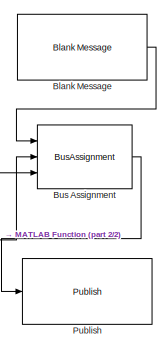
[diagram: root canvas - part 1/2, top right region]
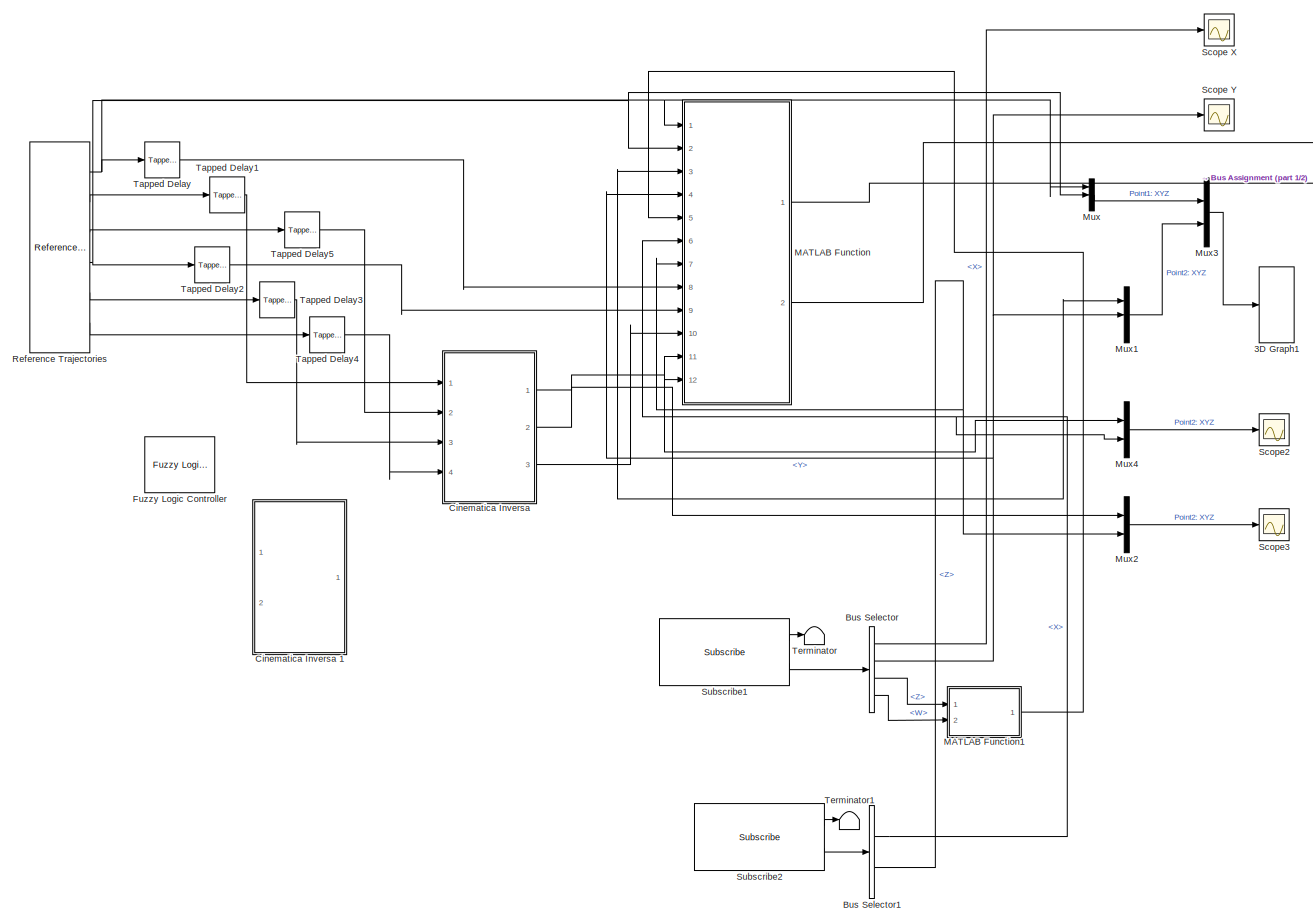
[diagram: root canvas - part 2/2, most of the canvas]
MODEL slx_c606bc5be805
KIND model
CONFIG AbsTol = auto
CONFIG EnableMultiTasking = off
CONFIG FixedStep = 0.04
CONFIG MaxStep = auto
CONFIG MinStep = auto
CONFIG RelTol = 1e-3
CONFIG SampleTimeConstraint = Unconstrained
CONFIG Solver = ode4
CONFIG SolverName = ode4
CONFIG StartTime = 0.0
CONFIG StopTime = 100
BLOCK [S-Function] 3D Graph1
  CopyFcn = if exist('sfun3d','file'), sfun3d([],[],[],'CopyBlock'); end
  DeleteFcn = if exist('sfun3d','file'), sfun3d([],[],[],'DeleteBlock'); end
  EnableBusSupport = off
  FunctionName = sfun3d
  LoadFcn = if exist('sfun3d','file'), sfun3d([],[],[],'LoadBlock'); end
  NameChangeFcn = if exist('sfun3d','file'), sfun3d([],[],[],'NameChange'); end
  Parameters = ax,T,np,cp,gd,ls,mk,mx,hd,tb
  Ports = [1]
  SFcnIsStateOwnerBlock = off
  SFunctionDeploymentMode = off
BLOCK [Reference] Blank Message  REF=robotlib/Blank Message
  Ports = [0, 1]
  SourceBlock = robotlib/Blank Message
  SourceProductBaseCode = RO
  SourceProductName = Robotics System Toolbox
  SourceType = ROS Blank Message
BLOCK [BusAssignment] Bus Assignment
  AssignedSignals = Linear.X,Angular.Z
  Ports = [3, 1]
BLOCK [BusSelector] Bus Selector
  OutputAsBus = off
  OutputSignals = Pose.Pose.Position.X,Pose.Pose.Position.Y,Pose.Pose.Orientation.Z,Pose.Pose.Orientation.W
  Ports = [1, 4]
BLOCK [BusSelector] Bus Selector1
  OutputAsBus = off
  OutputSignals = Linear.X,Angular.Z
  Ports = [1, 2]
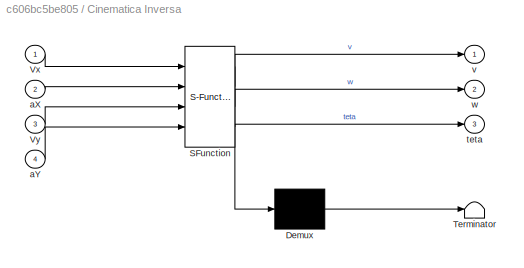
BLOCK [SubSystem] Cinematica Inversa 
  ErrorFcn = Stateflow.Translate.translate
  PermitHierarchicalResolution = ExplicitOnly
  Ports = [4, 3]
  RequestExecContextInheritance = off
  SFBlockType = MATLAB Function
  TreatAsAtomicUnit = on
BLOCK [Demux] Cinematica Inversa / Demux 
  Outputs = 1
  Ports = [1, 1]
BLOCK [S-Function] Cinematica Inversa / SFunction 
  EnableBusSupport = on
  FunctionName = sf_sfun
  PortCounts = [4 4]
  Ports = [4, 4]
  SFcnIsStateOwnerBlock = off
  SFunctionDeploymentMode = off
  Tag = Stateflow S-Function modeloSimulink 5
BLOCK [Terminator] Cinematica Inversa / Terminator 
BLOCK [Inport] Cinematica Inversa /Vx
  IconDisplay = Port number
BLOCK [Inport] Cinematica Inversa /Vy
  IconDisplay = Port number
  Port = 3
BLOCK [Inport] Cinematica Inversa /aX
  IconDisplay = Port number
  Port = 2
BLOCK [Inport] Cinematica Inversa /aY
  IconDisplay = Port number
  Port = 4
BLOCK [Outport] Cinematica Inversa /teta
  IconDisplay = Port number
  Port = 3
BLOCK [Outport] Cinematica Inversa /v
  IconDisplay = Port number
BLOCK [Outport] Cinematica Inversa /w
  IconDisplay = Port number
  Port = 2
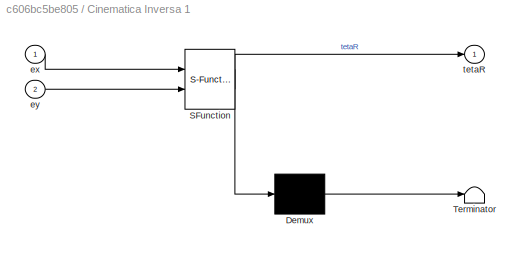
BLOCK [SubSystem] Cinematica Inversa 1
  ErrorFcn = Stateflow.Translate.translate
  PermitHierarchicalResolution = ExplicitOnly
  Ports = [2, 1]
  RequestExecContextInheritance = off
  SFBlockType = MATLAB Function
  TreatAsAtomicUnit = on
BLOCK [Demux] Cinematica Inversa 1/ Demux 
  Outputs = 1
  Ports = [1, 1]
BLOCK [S-Function] Cinematica Inversa 1/ SFunction 
  EnableBusSupport = on
  FunctionName = sf_sfun
  PortCounts = [2 2]
  Ports = [2, 2]
  SFcnIsStateOwnerBlock = off
  SFunctionDeploymentMode = off
  Tag = Stateflow S-Function modeloSimulink 2
BLOCK [Terminator] Cinematica Inversa 1/ Terminator 
BLOCK [Inport] Cinematica Inversa 1/ex
  IconDisplay = Port number
BLOCK [Inport] Cinematica Inversa 1/ey
  IconDisplay = Port number
  Port = 2
BLOCK [Outport] Cinematica Inversa 1/tetaR
  IconDisplay = Port number
BLOCK [Reference] Fuzzy Logic Controller  REF=fuzblock/Fuzzy Logic   (lib defined in mdl_858b3b3e7478)
Controller
  Ports = [1, 1]
  SourceBlock = fuzblock/Fuzzy Logic \nController
  SourceProductBaseCode = FL
  SourceProductName = Fuzzy Logic Toolbox
  SourceType = Fuzzy Inference System
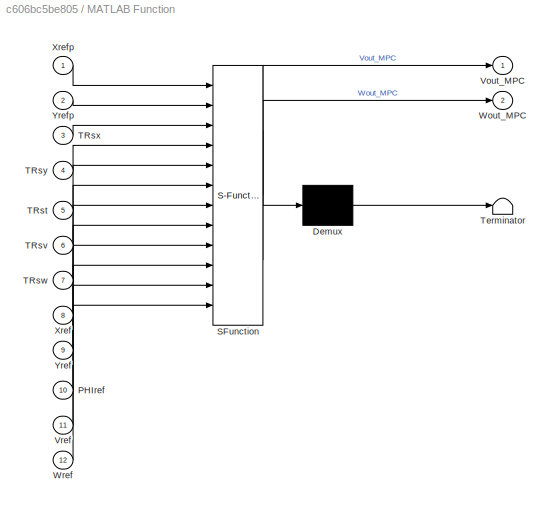
BLOCK [SubSystem] MATLAB Function
  ErrorFcn = Stateflow.Translate.translate
  PermitHierarchicalResolution = ExplicitOnly
  Ports = [12, 2]
  RequestExecContextInheritance = off
  SFBlockType = MATLAB Function
  TreatAsAtomicUnit = on
BLOCK [Demux] MATLAB Function/ Demux 
  Outputs = 1
  Ports = [1, 1]
BLOCK [S-Function] MATLAB Function/ SFunction 
  EnableBusSupport = on
  FunctionName = sf_sfun
  PortCounts = [12 3]
  Ports = [12, 3]
  SFcnIsStateOwnerBlock = off
  SFunctionDeploymentMode = off
  Tag = Stateflow S-Function modeloSimulink 4
BLOCK [Terminator] MATLAB Function/ Terminator 
BLOCK [Inport] MATLAB Function/PHIref
  IconDisplay = Port number
  Port = 10
BLOCK [Inport] MATLAB Function/TRst
  IconDisplay = Port number
  Port = 5
BLOCK [Inport] MATLAB Function/TRsv
  IconDisplay = Port number
  Port = 6
BLOCK [Inport] MATLAB Function/TRsw
  IconDisplay = Port number
  Port = 7
BLOCK [Inport] MATLAB Function/TRsx
  IconDisplay = Port number
  Port = 3
BLOCK [Inport] MATLAB Function/TRsy
  IconDisplay = Port number
  Port = 4
BLOCK [Outport] MATLAB Function/Vout_MPC
  IconDisplay = Port number
BLOCK [Inport] MATLAB Function/Vref
  IconDisplay = Port number
  Port = 11
BLOCK [Outport] MATLAB Function/Wout_MPC
  IconDisplay = Port number
  Port = 2
BLOCK [Inport] MATLAB Function/Wref
  IconDisplay = Port number
  Port = 12
BLOCK [Inport] MATLAB Function/Xref
  IconDisplay = Port number
  Port = 8
BLOCK [Inport] MATLAB Function/Xrefp
  IconDisplay = Port number
BLOCK [Inport] MATLAB Function/Yref
  IconDisplay = Port number
  Port = 9
BLOCK [Inport] MATLAB Function/Yrefp
  IconDisplay = Port number
  Port = 2
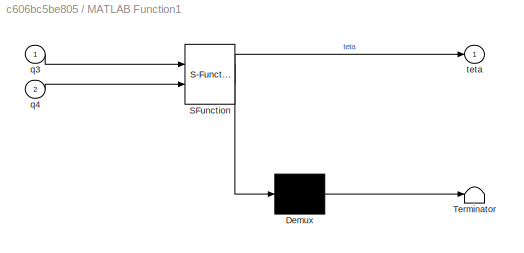
BLOCK [SubSystem] MATLAB Function1
  ErrorFcn = Stateflow.Translate.translate
  PermitHierarchicalResolution = ExplicitOnly
  Ports = [2, 1]
  RequestExecContextInheritance = off
  SFBlockType = MATLAB Function
  TreatAsAtomicUnit = on
BLOCK [Demux] MATLAB Function1/ Demux 
  Outputs = 1
  Ports = [1, 1]
BLOCK [S-Function] MATLAB Function1/ SFunction 
  EnableBusSupport = on
  FunctionName = sf_sfun
  PortCounts = [2 2]
  Ports = [2, 2]
  SFcnIsStateOwnerBlock = off
  SFunctionDeploymentMode = off
  Tag = Stateflow S-Function modeloSimulink 1
BLOCK [Terminator] MATLAB Function1/ Terminator 
BLOCK [Inport] MATLAB Function1/q3
  IconDisplay = Port number
BLOCK [Inport] MATLAB Function1/q4
  IconDisplay = Port number
  Port = 2
BLOCK [Outport] MATLAB Function1/teta
  IconDisplay = Port number
BLOCK [Mux] Mux
  DisplayOption = bar
  Inputs = 3
  Ports = [3, 1]
BLOCK [Mux] Mux1
  DisplayOption = bar
  Inputs = 3
  Ports = [3, 1]
BLOCK [Mux] Mux2
  DisplayOption = bar
  Inputs = 2
  Ports = [2, 1]
BLOCK [Mux] Mux3
  DisplayOption = bar
  Inputs = 2
  Ports = [2, 1]
BLOCK [Mux] Mux4
  DisplayOption = bar
  Inputs = 2
  Ports = [2, 1]
BLOCK [Reference] Publish  REF=robotlib/Publish
  Ports = [1]
  SourceBlock = robotlib/Publish
  SourceProductBaseCode = RO
  SourceProductName = Robotics System Toolbox
  SourceType = ROS Publish
BLOCK [Reference] Reference Trajectories  REF=Controllers/Reference
Trajectories
  Ports = [0, 6]
  SourceBlock = Controllers/Reference\nTrajectories
  SourceType = Reference Trajectories
BLOCK [Scope] Scope X
  Floating = off
  NumInputPorts = 1
  Ports = [1]
  ScopeSpecificationString = Simulink.scopes.TimeScopeBlockCfg('CurrentConfiguration', extmgr.ConfigurationSet(extmgr.Configuration('Core','General UI',true),extmgr.Configuration('Core','Source UI',true),extmgr.Configuration('Sources','WiredSimulink',true),extmgr.Configuration('Visuals','Time Domain',true,'SerializedDisplays',{struct('MinYLimReal','0.0012548','MaxYLimReal','0.0012615','YLabelReal','','MinYLimMag','0.0012548',...<+1366ch>
BLOCK [Scope] Scope Y
  Floating = off
  NumInputPorts = 1
  Ports = [1]
  ScopeSpecificationString = Simulink.scopes.TimeScopeBlockCfg('CurrentConfiguration', extmgr.ConfigurationSet(extmgr.Configuration('Core','General UI',true),extmgr.Configuration('Core','Source UI',true),extmgr.Configuration('Sources','WiredSimulink',true,'DataLoggingVariableName','ScopeData1'),extmgr.Configuration('Visuals','Time Domain',true,'SerializedDisplays',{struct('MinYLimReal','-0.000648','MaxYLimReal','-0.0006388','...<+1405ch>
BLOCK [Scope] Scope2
  Floating = off
  NumInputPorts = 1
  Ports = [1]
  ScopeSpecificationString = Simulink.scopes.TimeScopeBlockCfg('CurrentConfiguration', extmgr.ConfigurationSet(extmgr.Configuration('Core','General UI',true),extmgr.Configuration('Core','Source UI',true),extmgr.Configuration('Sources','WiredSimulink',true,'DataLoggingVariableName','ScopeData2'),extmgr.Configuration('Visuals','Time Domain',true,'SerializedDisplays',{struct('MinYLimReal','-0.0125','MaxYLimReal','0.1125','YLabel...<+1411ch>
BLOCK [Scope] Scope3
  Floating = off
  NumInputPorts = 1
  Ports = [1]
  ScopeSpecificationString = Simulink.scopes.TimeScopeBlockCfg('CurrentConfiguration', extmgr.ConfigurationSet(extmgr.Configuration('Core','General UI',true),extmgr.Configuration('Core','Source UI',true),extmgr.Configuration('Sources','WiredSimulink',true,'DataLoggingVariableName','ScopeData3'),extmgr.Configuration('Visuals','Time Domain',true,'SerializedDisplays',{struct('MinYLimReal','-0.0125','MaxYLimReal','0.1125','YLabel...<+1411ch>
BLOCK [Reference] Subscribe1  REF=robotlib/Subscribe
  Ports = [0, 2]
  SourceBlock = robotlib/Subscribe
  SourceProductBaseCode = RO
  SourceProductName = Robotics System Toolbox
  SourceType = ROS Subscribe
BLOCK [Reference] Subscribe2  REF=robotlib/Subscribe
  Ports = [0, 2]
  SourceBlock = robotlib/Subscribe
  SourceProductBaseCode = RO
  SourceProductName = Robotics System Toolbox
  SourceType = ROS Subscribe
BLOCK [Reference] Tapped Delay  REF=simulink/Discrete/Tapped Delay
  Ports = [1, 1]
  SourceBlock = simulink/Discrete/Tapped Delay
  SourceProductBaseCode = SL
  SourceProductName = Simulink
  SourceType = Tapped Delay Line
BLOCK [Reference] Tapped Delay1  REF=simulink/Discrete/Tapped Delay
  Ports = [1, 1]
  SourceBlock = simulink/Discrete/Tapped Delay
  SourceProductBaseCode = SL
  SourceProductName = Simulink
  SourceType = Tapped Delay Line
BLOCK [Reference] Tapped Delay2  REF=simulink/Discrete/Tapped Delay
  Ports = [1, 1]
  SourceBlock = simulink/Discrete/Tapped Delay
  SourceProductBaseCode = SL
  SourceProductName = Simulink
  SourceType = Tapped Delay Line
BLOCK [Reference] Tapped Delay3  REF=simulink/Discrete/Tapped Delay
  Ports = [1, 1]
  SourceBlock = simulink/Discrete/Tapped Delay
  SourceProductBaseCode = SL
  SourceProductName = Simulink
  SourceType = Tapped Delay Line
BLOCK [Reference] Tapped Delay4  REF=simulink/Discrete/Tapped Delay
  Ports = [1, 1]
  SourceBlock = simulink/Discrete/Tapped Delay
  SourceProductBaseCode = SL
  SourceProductName = Simulink
  SourceType = Tapped Delay Line
BLOCK [Reference] Tapped Delay5  REF=simulink/Discrete/Tapped Delay
  Ports = [1, 1]
  SourceBlock = simulink/Discrete/Tapped Delay
  SourceProductBaseCode = SL
  SourceProductName = Simulink
  SourceType = Tapped Delay Line
BLOCK [Terminator] Terminator
BLOCK [Terminator] Terminator1
LINE Blank Message:1 -> Bus Assignment:1
LINE Bus Assignment:1 -> Publish:1
NET Bus Selector1:1 -> MATLAB Function:6, Mux4:2
NET Bus Selector1:2 -> MATLAB Function:7, Mux2:2
NET Bus Selector:1 -> MATLAB Function:3, Mux1:1, Scope X:1
NET Bus Selector:2 -> MATLAB Function:4, Mux1:2, Scope Y:1
LINE Bus Selector:3 -> MATLAB Function1:1
LINE Bus Selector:4 -> MATLAB Function1:2
NET Cinematica Inversa :1 -> MATLAB Function:11, Mux4:1
NET Cinematica Inversa :2 -> MATLAB Function:12, Mux2:1
LINE Cinematica Inversa :3 -> MATLAB Function:10
LINE MATLAB Function1:1 -> MATLAB Function:5
LINE MATLAB Function:1 -> Bus Assignment:2
LINE MATLAB Function:2 -> Bus Assignment:3
LINE Mux1:1 -> Mux3:2
LINE Mux2:1 -> Scope3:1
LINE Mux3:1 -> 3D Graph1:1
LINE Mux4:1 -> Scope2:1
LINE Mux:1 -> Mux3:1
NET Reference Trajectories:1 -> MATLAB Function:1, Mux:1, Tapped Delay:1
LINE Reference Trajectories:2 -> Tapped Delay1:1
LINE Reference Trajectories:3 -> Tapped Delay5:1
NET Reference Trajectories:4 -> MATLAB Function:2, Mux:2, Tapped Delay2:1
LINE Reference Trajectories:5 -> Tapped Delay3:1
LINE Reference Trajectories:6 -> Tapped Delay4:1
LINE Subscribe1:1 -> Terminator:1
LINE Subscribe1:2 -> Bus Selector:1
LINE Subscribe2:1 -> Terminator1:1
LINE Subscribe2:2 -> Bus Selector1:1
LINE Tapped Delay1:1 -> Cinematica Inversa :1
LINE Tapped Delay2:1 -> MATLAB Function:9
LINE Tapped Delay3:1 -> Cinematica Inversa :3
LINE Tapped Delay4:1 -> Cinematica Inversa :4
LINE Tapped Delay5:1 -> Cinematica Inversa :2
LINE Tapped Delay:1 -> MATLAB Function:8
note: NET lines group one-source signal fan-out (src -> all destinations, sorted); 1:1 wires keep LINE
CHART MATLAB Function1 states=1 transitions=1
  STATE_LABEL 'eML_blk_kernel()'
  STATE_LABEL 'SCRIPT:\nfunction teta = fcn2(q3, q4)\n\n    teta = 2*atan2(q3, q4);\n\nend\n'
CHART Cinematica Inversa
1 states=1 transitions=1
  STATE_LABEL 'eML_blk_kernel()'
  STATE_LABEL 'SCRIPT:\nfunction tetaR  = fnc(ex, ey)\n    tetaR = atan2(ex,ey);\nend\n'
CHART MATLAB Function states=1 transitions=1
  STATE_LABEL 'eML_blk_kernel()'
  STATE_LABEL 'SCRIPT:\nfunction [Vout_MPC, Wout_MPC] = MPC(Xrefp, Yrefp, TRsx, TRsy, TRst, TRsv, TRsw,Xref, Yref, PHIref, Vref, Wref)\n    % Parâmetros do controlador\n    Vmax = 0.4;\n    d = 0.23;\n    N1 = 1;\n    N2 = 10; %Horizonte de predição\n    Nu = 2;  %Horizonte de controle\n    L1 = 10;    %1\n    L2 = 2500;  %2.5\n    L3 = 400;    %1\n    eta = 0.1;\n    Imax = 15;\n    I = 0;\n    Delta = 0.1;\n    \n    % Parâme...<+3608ch>'
CHART Cinematica Inversa
 states=1 transitions=1
  STATE_LABEL 'eML_blk_kernel()'
  STATE_LABEL 'SCRIPT:\nfunction [v,w,teta] = fnc(Vx, aX, Vy, aY)\n  \n    teta = atan2(Vy,Vx);\n    \n    v = sqrt(Vx^2 + Vy^2);\n    \n    w = (Vx*aY - Vy*aX)/(Vx^2 + Vy^2);\n\nend\n'
